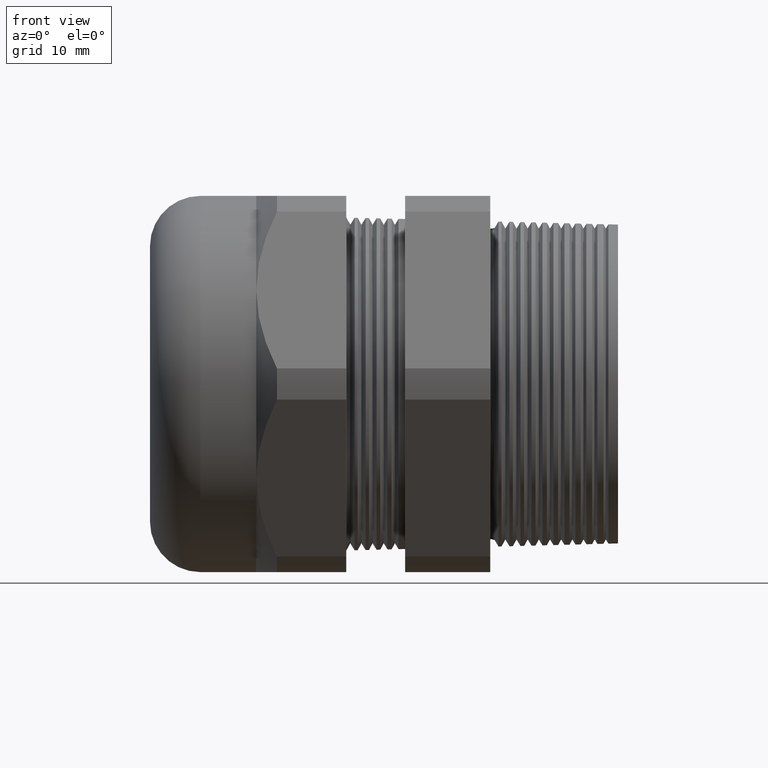
[diagram: clean part render]
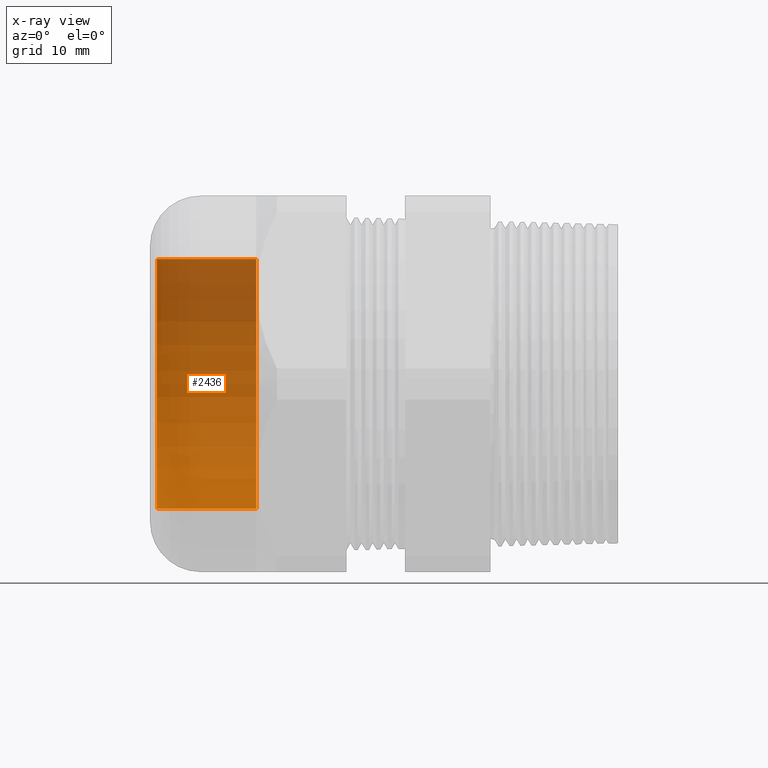
[diagram: x-ray — body ghosted, one internal face saturated and labeled with its STEP entity id]
A machine part, front view, then the same camera in x-ray: the body is ghosted and one INTERNAL B-rep face — a face not visible from any outside direction — is saturated and labeled: STEP entity #2436.
In plain terms, the highlighted cylindrical surface (partial cylindrical patch) has radius 17.6213 mm, axis along (1, 0, 0).
Its self-contained STEP definition (entity closure, byte-faithful):
#643 = CARTESIAN_POINT ( 'NONE',  ( -2.161000000000000000, 0.0000000000000000000, -0.6937500000000002000 ) ) ;
#644 = DIRECTION ( 'NONE',  ( 0.0000000000000000000, 0.0000000000000000000, -1.000000000000000000 ) ) ;
#645 = DIRECTION ( 'NONE',  ( 1.000000000000000000, 0.0000000000000000000, 0.0000000000000000000 ) ) ;
#646 = CARTESIAN_POINT ( 'NONE',  ( -2.161000000000000000, 0.0000000000000000000, 0.0000000000000000000 ) ) ;
#647 = AXIS2_PLACEMENT_3D ( 'NONE', #646, #645, #644 ) ;
#648 = CIRCLE ( 'NONE', #647, 0.6937500000000002000 ) ;
#649 = CARTESIAN_POINT ( 'NONE',  ( -2.161000000000000000, 8.495987169084765900E-017, 0.6937500000000002000 ) ) ;
#694 = DIRECTION ( 'NONE',  ( 0.0000000000000000000, 0.0000000000000000000, -1.000000000000000000 ) ) ;
#695 = DIRECTION ( 'NONE',  ( 1.000000000000000000, 0.0000000000000000000, 0.0000000000000000000 ) ) ;
#696 = AXIS2_PLACEMENT_3D ( 'NONE', #699, #695, #694 ) ;
#697 = CYLINDRICAL_SURFACE ( 'NONE', #696, 0.6937500000000002000 ) ;
#699 = CARTESIAN_POINT ( 'NONE',  ( 0.0000000000000000000, 0.0000000000000000000, 0.0000000000000000000 ) ) ;
#705 = FACE_OUTER_BOUND ( 'NONE', #2485, .T. ) ;
#737 = DIRECTION ( 'NONE',  ( 0.0000000000000000000, 0.0000000000000000000, -1.000000000000000000 ) ) ;
#738 = DIRECTION ( 'NONE',  ( 1.000000000000000000, 0.0000000000000000000, 0.0000000000000000000 ) ) ;
#739 = CARTESIAN_POINT ( 'NONE',  ( -1.609450000000000000, 0.0000000000000000000, 0.0000000000000000000 ) ) ;
#740 = AXIS2_PLACEMENT_3D ( 'NONE', #739, #738, #737 ) ;
#741 = CIRCLE ( 'NONE', #740, 0.6937500000000002000 ) ;
#742 = CARTESIAN_POINT ( 'NONE',  ( -1.609450000000000000, 8.495987169084765900E-017, 0.6937500000000002000 ) ) ;
#743 = DIRECTION ( 'NONE',  ( 1.000000000000000000, 0.0000000000000000000, 0.0000000000000000000 ) ) ;
#744 = VECTOR ( 'NONE', #743, 39.37007874015748100 ) ;
#745 = CARTESIAN_POINT ( 'NONE',  ( 0.0000000000000000000, 8.495987169084765900E-017, 0.6937500000000002000 ) ) ;
#750 = LINE ( 'NONE', #745, #744 ) ;
#794 = DIRECTION ( 'NONE',  ( 1.000000000000000000, 0.0000000000000000000, 0.0000000000000000000 ) ) ;
#795 = VECTOR ( 'NONE', #794, 39.37007874015748100 ) ;
#796 = CARTESIAN_POINT ( 'NONE',  ( 0.0000000000000000000, 0.0000000000000000000, -0.6937500000000002000 ) ) ;
#797 = LINE ( 'NONE', #796, #795 ) ;
#798 = CARTESIAN_POINT ( 'NONE',  ( -1.609450000000000000, 0.0000000000000000000, -0.6937500000000002000 ) ) ;
#2430 = VERTEX_POINT ( 'NONE', #649 ) ;
#2432 = EDGE_CURVE ( 'NONE', #2433, #2430, #648, .T. ) ;
#2433 = VERTEX_POINT ( 'NONE', #643 ) ;
#2436 = ADVANCED_FACE ( 'NONE', ( #705 ), #697, .T. ) ;
#2485 = EDGE_LOOP ( 'NONE', ( #2486, #2487, #2490, #2493 ) ) ;
#2486 = ORIENTED_EDGE ( 'NONE', *, *, #2432, .T. ) ;
#2487 = ORIENTED_EDGE ( 'NONE', *, *, #2488, .T. ) ;
#2488 = EDGE_CURVE ( 'NONE', #2430, #2489, #750, .T. ) ;
#2489 = VERTEX_POINT ( 'NONE', #742 ) ;
#2490 = ORIENTED_EDGE ( 'NONE', *, *, #2491, .F. ) ;
#2491 = EDGE_CURVE ( 'NONE', #2492, #2489, #741, .T. ) ;
#2492 = VERTEX_POINT ( 'NONE', #798 ) ;
#2493 = ORIENTED_EDGE ( 'NONE', *, *, #2494, .F. ) ;
#2494 = EDGE_CURVE ( 'NONE', #2433, #2492, #797, .T. ) ;